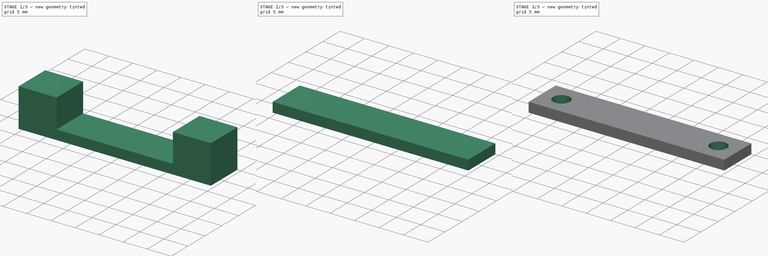
[diagram: build sequence overview — one tinted view per stage of 3, left to right]
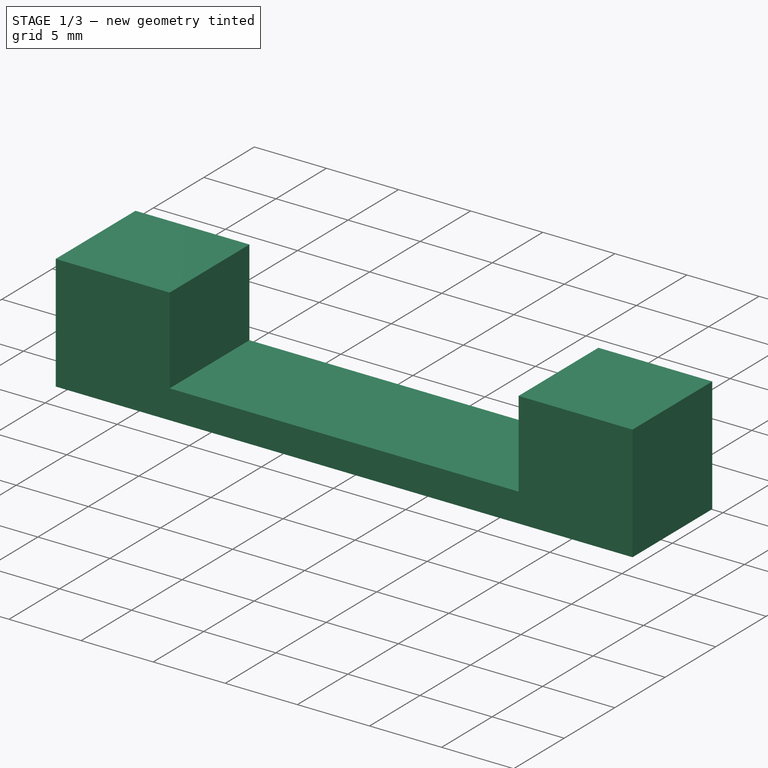
[diagram: stage 1 of 3 — iso view after this stage's code; geometry added in this stage tinted green]
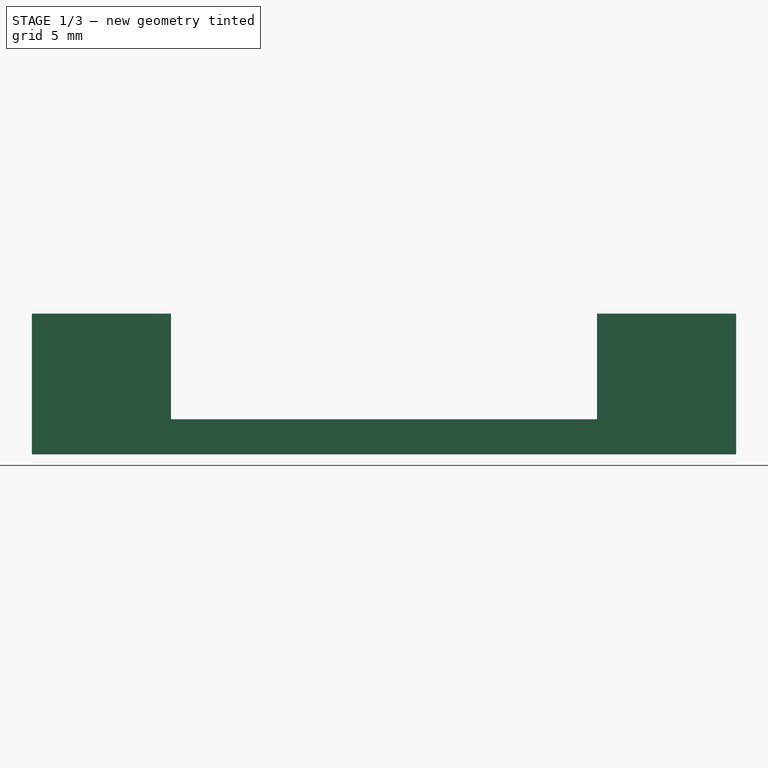
[diagram: stage 1 of 3 — front view after this stage's code; geometry added in this stage tinted green]
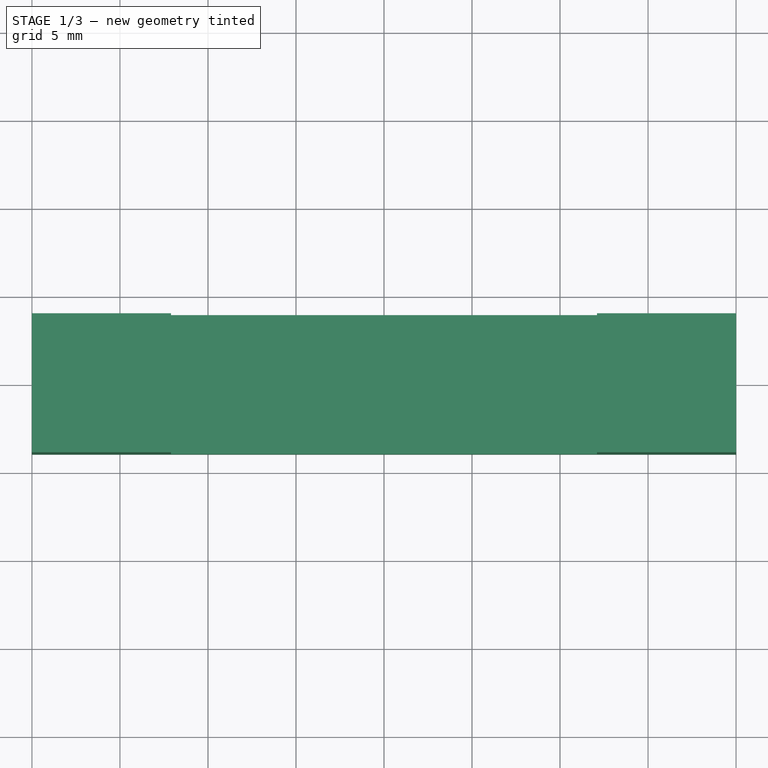
[diagram: stage 1 of 3 — top view after this stage's code; geometry added in this stage tinted green]
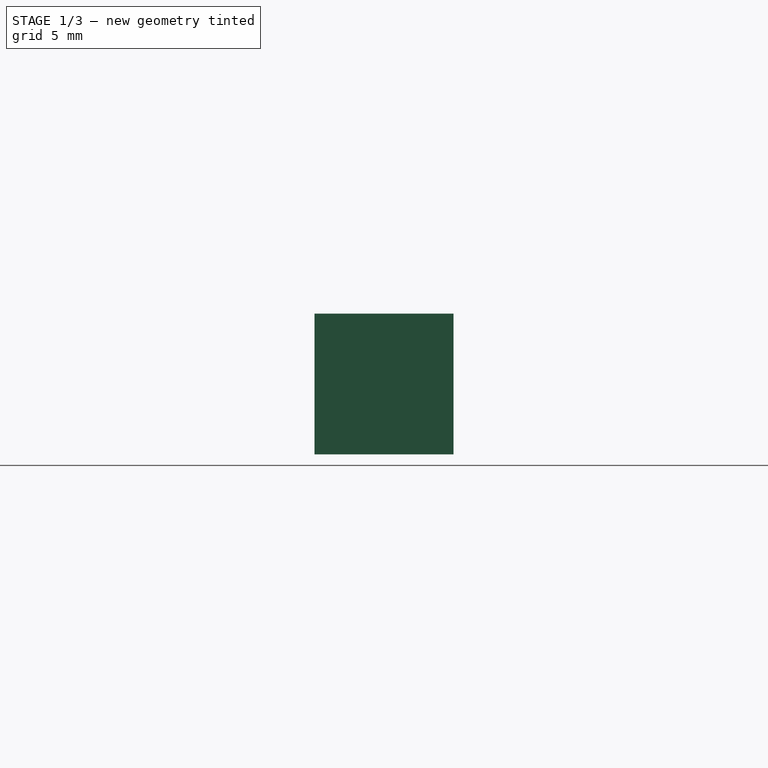
[diagram: stage 1 of 3 — right view after this stage's code; geometry added in this stage tinted green]
FCSTD DOCUMENT  (FreeCAD 1.0R38643 (Git))
Label: cable_clip
License: All rights reserved
LicenseURL: http://en.wikipedia.org/wiki/All_rights_reserved
objects: Sketcher::SketchObject×4, PartDesign::Pad×3, PartDesign::Hole×2, PartDesign::Mirrored×2, PartDesign::Body×2, PartDesign::SubShapeBinder×1
note: 30 computed .brp shape members not serialized (recipe doc carries the construction recipe); baked Part::Feature solids carry a one-line shape summary decoded from their .brp

FEATURE [Sketcher::SketchObject] Sketch
  ArcFitTolerance = 1e-06
  AttachmentSupport = -> [XY_Plane]
  FullyConstrained = true
  MakeInternals = false
  MapMode = 5
  expr: Constraints[11] = 3.9 mm + 2 * 2 mm
  sketch-geometry (10):
    g0: LineSegment StartX=-20 StartY=3.95 StartZ=0 EndX=-20 EndY=-3.95 EndZ=0
    g1: LineSegment StartX=-20 StartY=-3.95 StartZ=0 EndX=-12.1 EndY=-3.95 EndZ=0
    g2: LineSegment StartX=-12.1 StartY=-3.95 StartZ=0 EndX=-12.1 EndY=3.95 EndZ=0
    g3: LineSegment StartX=-12.1 StartY=3.95 StartZ=0 EndX=-20 EndY=3.95 EndZ=0
    g4: LineSegment StartX=20 StartY=3.95 StartZ=0 EndX=20 EndY=-3.95 EndZ=0
    g5: LineSegment StartX=12.1 StartY=-3.95 StartZ=0 EndX=12.1 EndY=3.95 EndZ=0
    g6: LineSegment StartX=-12.1 StartY=3.95 StartZ=0 EndX=12.1 EndY=3.95 EndZ=0
    g7: LineSegment StartX=-12.1 StartY=-3.95 StartZ=0 EndX=12.1 EndY=-3.95 EndZ=0
    g8: LineSegment StartX=12.1 StartY=3.95 StartZ=0 EndX=20 EndY=3.95 EndZ=0
    g9: LineSegment StartX=12.1 StartY=-3.95 StartZ=0 EndX=20 EndY=-3.95 EndZ=0
  constraints (27):
    c: Coincident(g0,g1)
    c: Coincident(g1,g2)
    c: Coincident(g2,g3)
    c: Coincident(g3,g0)
    c: Vertical(g0)
    c: Vertical(g2)
    c: Horizontal(g1)
    c: Horizontal(g3)
    c: Vertical(g4)
    c: Vertical(g5)
    c: Equal(g0,g3)
    c: Distance(g0,g0) = 7.9
    c: Coincident(g6,g2)
    c: Coincident(g6,g5)
    c: Horizontal(g6)
    c: Coincident(g7,g1)
    c: Coincident(g7,g5)
    c: Horizontal(g7)
    c: Coincident(g8,g5)
    c: Coincident(g8,g4)
    c: Horizontal(g8)
    c: Coincident(g9,g5)
    c: Coincident(g9,g4)
    c: Horizontal(g9)
    c: Equal(g3,g8)
    c: Symmetric(g0,g4,g-1)
    c: DistanceX(g0,g4) = 40
FEATURE [PartDesign::Pad] Pad
  Direction = (0,0,1)
  Length = 2
  Length2 = 10
  Profile = -> Sketch [Edge1,Edge10,Edge3,Edge7,Edge6,Edge5,Edge8,Edge2]
  ReferenceAxis = -> Sketch [N_Axis]
  Suppressed = false
  Type = 0
FEATURE [PartDesign::Pad] Pad001
  BaseFeature = -> Pad
  Direction = (0,0,1)
  Length = 8
  Length2 = 10
  Profile = -> Sketch [Edge10,Edge1,Edge2,Edge9,Edge4,Edge7,Edge6,Edge5]
  ReferenceAxis = -> Sketch [N_Axis]
  Suppressed = false
  Type = 0
  expr: Length = Pad.Length + 6 mm
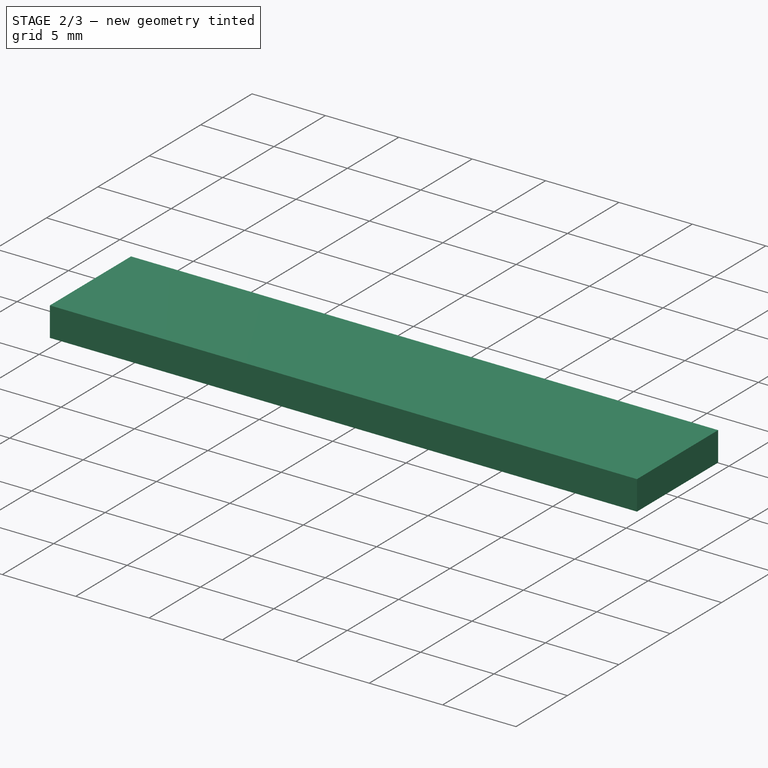
[diagram: stage 2 of 3 — iso view after this stage's code; geometry added in this stage tinted green]
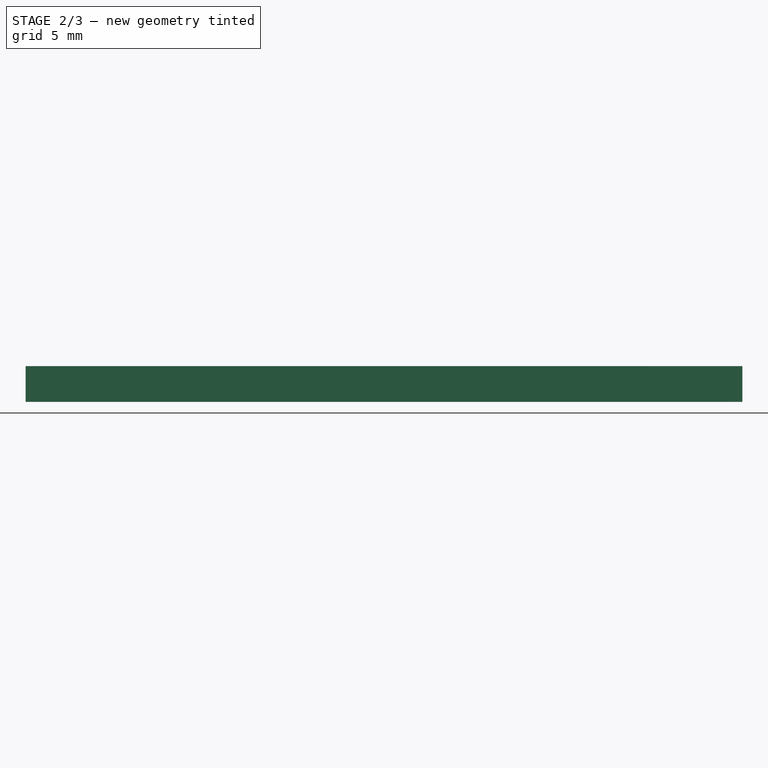
[diagram: stage 2 of 3 — front view after this stage's code; geometry added in this stage tinted green]
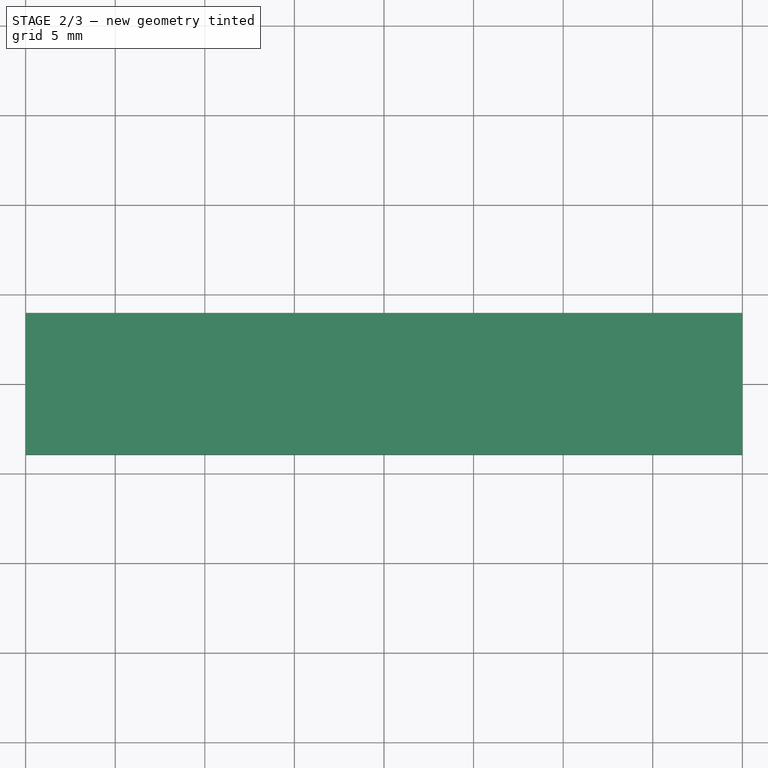
[diagram: stage 2 of 3 — top view after this stage's code; geometry added in this stage tinted green]
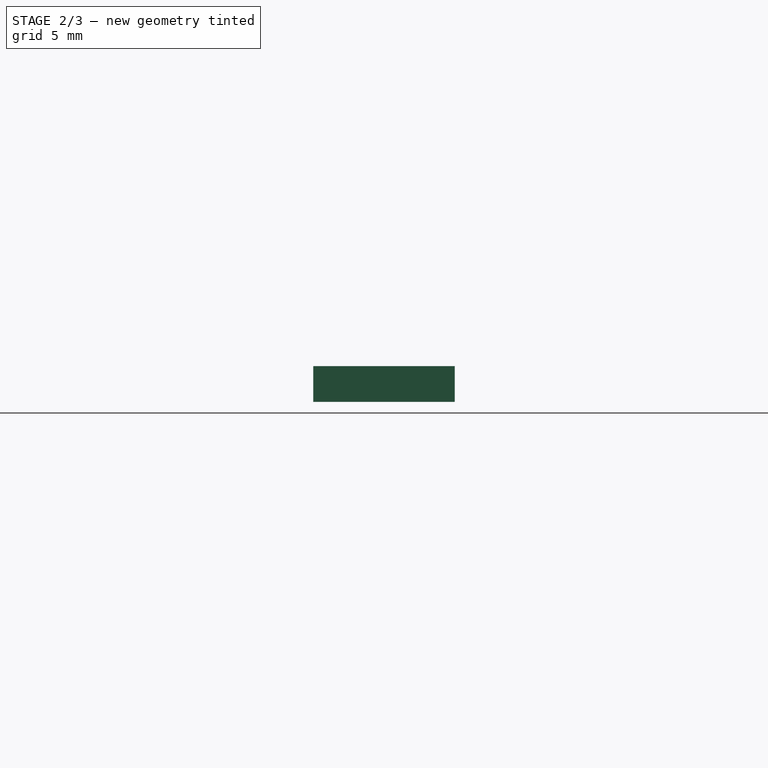
[diagram: stage 2 of 3 — right view after this stage's code; geometry added in this stage tinted green]
FEATURE [Sketcher::SketchObject] Sketch001
  ArcFitTolerance = 1e-06
  AttachmentSupport = -> [Pad001]
  ExternalGeometry = -> [Pad001]
  FullyConstrained = true
  MakeInternals = false
  MapMode = 5
  Placement = pos=(0,0,8) rot=(0,0,1;0rad)
  sketch-geometry (2):
    g0: Circle CenterX=-16.05 CenterY=-7e-16 CenterZ=0 NormalX=0 NormalY=0 NormalZ=1 AngleXU=0 Radius=0.5
    g1: Circle CenterX=16.05 CenterY=-7e-16 CenterZ=0 NormalX=0 NormalY=0 NormalZ=1 AngleXU=0 Radius=0.5
  constraints (4):
    c: Symmetric(g-5,g-3,g0)
    c: Diameter(g0) = 1
    c: Diameter(g1) = 1
    c: Symmetric(g-6,g-4,g1)
FEATURE [PartDesign::Hole] Hole
  BaseFeature = -> Pad001
  CustomThreadClearance = 0
  Depth = 5.2
  DepthType = 0
  Diameter = 3.9
  DrillForDepth = false
  DrillPoint = 0
  DrillPointAngle = 118
  HoleCutCountersinkAngle = 90
  HoleCutCustomValues = false
  HoleCutDepth = 0
  HoleCutDiameter = 6.1
  HoleCutType = 0
  ModelThread = false
  Profile = -> Sketch001 [Edge1]
  Suppressed = false
  Tapered = false
  TaperedAngle = 90
  ThreadClass = 0
  ThreadDepth = 5.2
  ThreadDepthType = 0
  ThreadDirection = 0
  ThreadFit = 0
  ThreadSize = 0
  ThreadType = 0
  Threaded = false
  UseCustomThreadClearance = false
FEATURE [PartDesign::Mirrored] Mirrored
  BaseFeature = -> Hole
  MirrorPlane = -> YZ_Plane
  Originals = -> [Hole]
  Suppressed = false
  TransformMode = 0
FEATURE [PartDesign::Body] Body
  AllowCompound = false
  Group = -> [Sketch,Pad,Pad001,Sketch001,Hole,Mirrored]
  Origin = -> Origin
  Tip = -> Mirrored
FEATURE [PartDesign::SubShapeBinder] Binder
  BindCopyOnChange = 0
  BindMode = 0
  ClaimChildren = false
  Context = -> Body001 [Binder.]
  Fuse = false
  MakeFace = true
  OffsetFill = false
  OffsetIntersection = false
  OffsetJoinType = 0
  OffsetOpenResult = false
  PartialLoad = false
  Relative = true
  Support = -> [Body]
  _Version = 2
FEATURE [Sketcher::SketchObject] Sketch002
  ArcFitTolerance = 1e-06
  AttachmentSupport = -> [Binder]
  ExternalGeometry = -> [Binder]
  FullyConstrained = true
  MakeInternals = false
  MapMode = 5
  Placement = pos=(0,0,8) rot=(0,0,1;0rad)
  sketch-geometry (4):
    g0: LineSegment StartX=-20 StartY=-3.95 StartZ=0 EndX=20 EndY=-3.95 EndZ=0
    g1: LineSegment StartX=20 StartY=-3.95 StartZ=0 EndX=20 EndY=3.95 EndZ=0
    g2: LineSegment StartX=20 StartY=3.95 StartZ=0 EndX=-20 EndY=3.95 EndZ=0
    g3: LineSegment StartX=-20 StartY=3.95 StartZ=0 EndX=-20 EndY=-3.95 EndZ=0
  constraints (10):
    c: Coincident(g0,g1)
    c: Coincident(g1,g2)
    c: Coincident(g2,g3)
    c: Coincident(g3,g0)
    c: Horizontal(g0)
    c: Horizontal(g2)
    c: Vertical(g1)
    c: Vertical(g3)
    c: Coincident(g0,g-3)
    c: Coincident(g1,g-4)
FEATURE [PartDesign::Pad] Pad002
  Direction = (0,0,1)
  Length = 2
  Length2 = 10
  Profile = -> Sketch002
  ReferenceAxis = -> Sketch002 [N_Axis]
  Suppressed = false
  Type = 0
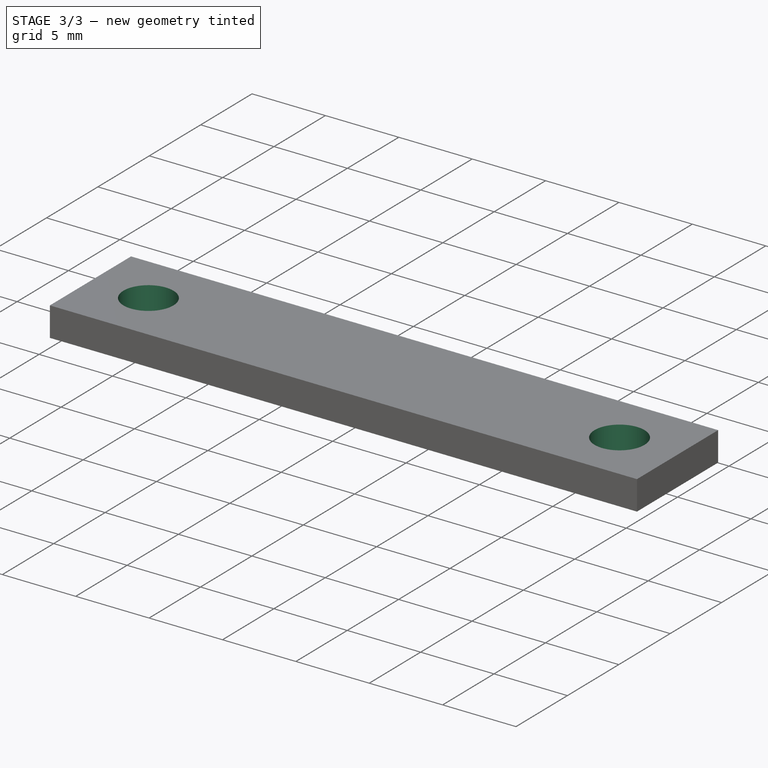
[diagram: stage 3 of 3 — iso view after this stage's code; geometry added in this stage tinted green]
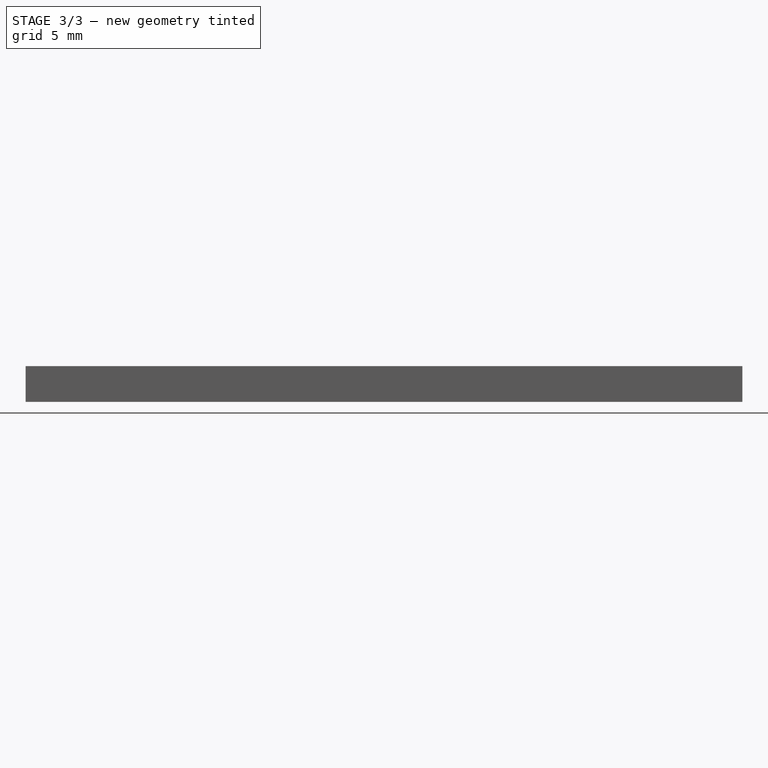
[diagram: stage 3 of 3 — front view after this stage's code; geometry added in this stage tinted green]
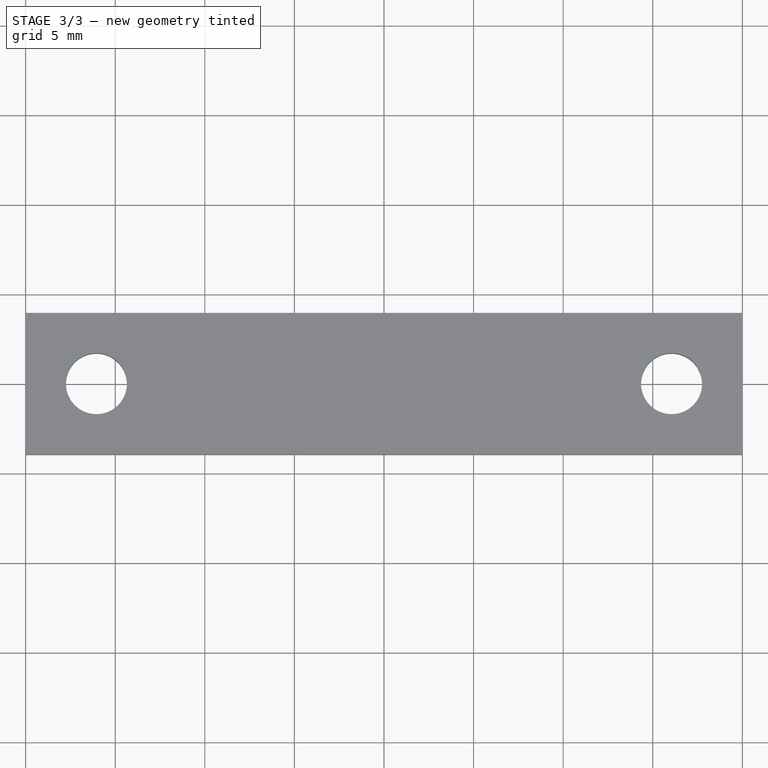
[diagram: stage 3 of 3 — top view after this stage's code; geometry added in this stage tinted green]
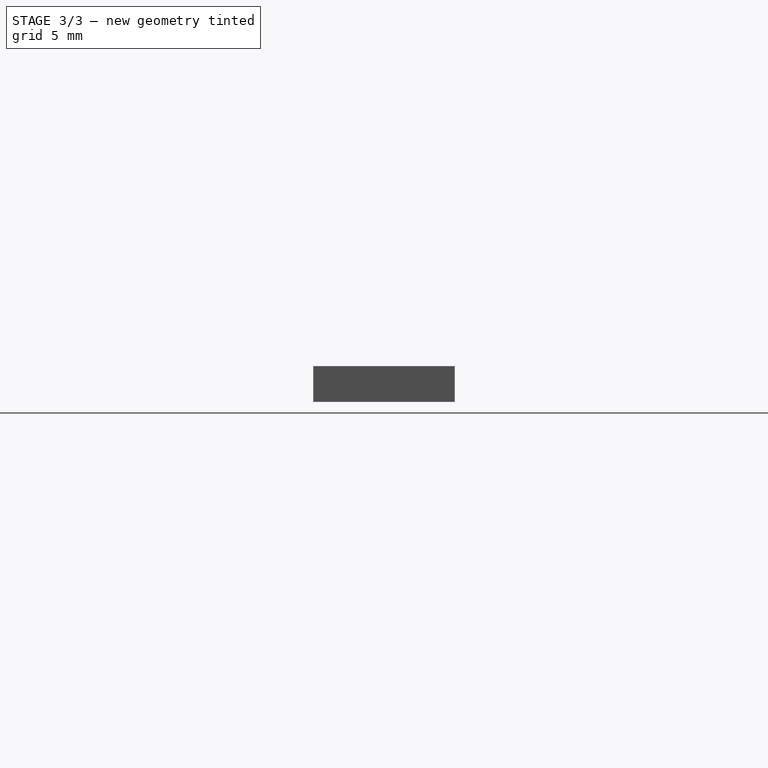
[diagram: stage 3 of 3 — right view after this stage's code; geometry added in this stage tinted green]
FEATURE [Sketcher::SketchObject] Sketch003
  ArcFitTolerance = 1e-06
  AttachmentSupport = -> [Pad002]
  ExternalGeometry = -> [Binder]
  FullyConstrained = true
  MakeInternals = false
  MapMode = 5
  Placement = pos=(0,0,8) rot=(1,0,0;3.14159rad)
  sketch-geometry (1):
    g0: Circle CenterX=-16.05 CenterY=0 CenterZ=0 NormalX=0 NormalY=0 NormalZ=1 AngleXU=0 Radius=1.95
  constraints (2):
    c: Coincident(g0,g-3)
    c: Equal(g0,g-3)
FEATURE [PartDesign::Hole] Hole001
  BaseFeature = -> Pad002
  CustomThreadClearance = 0
  Depth = 82.4598
  DepthType = 1
  Diameter = 3.4
  DrillForDepth = false
  DrillPoint = 1
  DrillPointAngle = 118
  HoleCutCountersinkAngle = 90
  HoleCutCustomValues = false
  HoleCutDepth = 0
  HoleCutDiameter = 6.1
  HoleCutType = 0
  ModelThread = true
  Profile = -> Sketch003
  Suppressed = false
  Tapered = false
  TaperedAngle = 90
  ThreadClass = 0
  ThreadDepth = 82.4598
  ThreadDepthType = 0
  ThreadDirection = 0
  ThreadFit = 0
  ThreadSize = 9
  ThreadType = 1
  Threaded = false
  UseCustomThreadClearance = false
FEATURE [PartDesign::Mirrored] Mirrored001
  BaseFeature = -> Hole001
  MirrorPlane = -> YZ_Plane001
  Originals = -> [Hole001]
  Suppressed = false
  TransformMode = 0
FEATURE [PartDesign::Body] Body001
  AllowCompound = false
  Group = -> [Binder,Sketch002,Pad002,Sketch003,Hole001,Mirrored001]
  Origin = -> Origin001
  Tip = -> Mirrored001
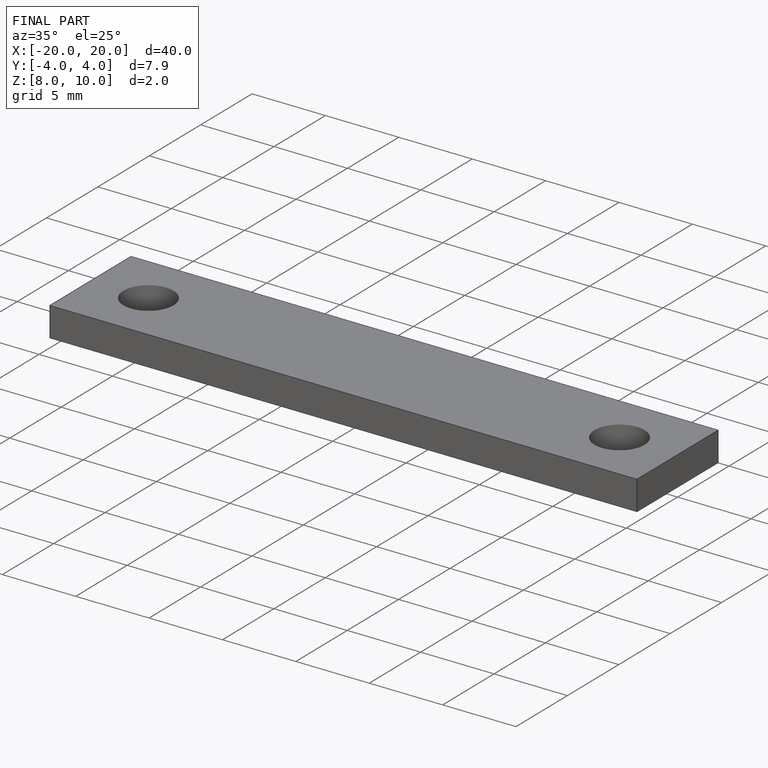
[diagram: finished part — iso view with bounding-box wireframe]
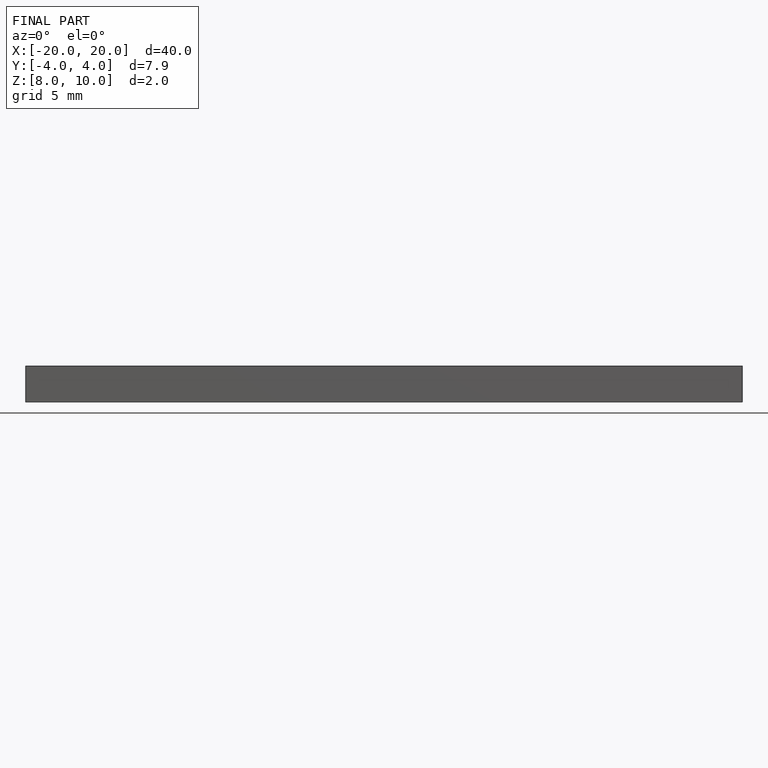
[diagram: finished part — front view with bounding-box wireframe]
